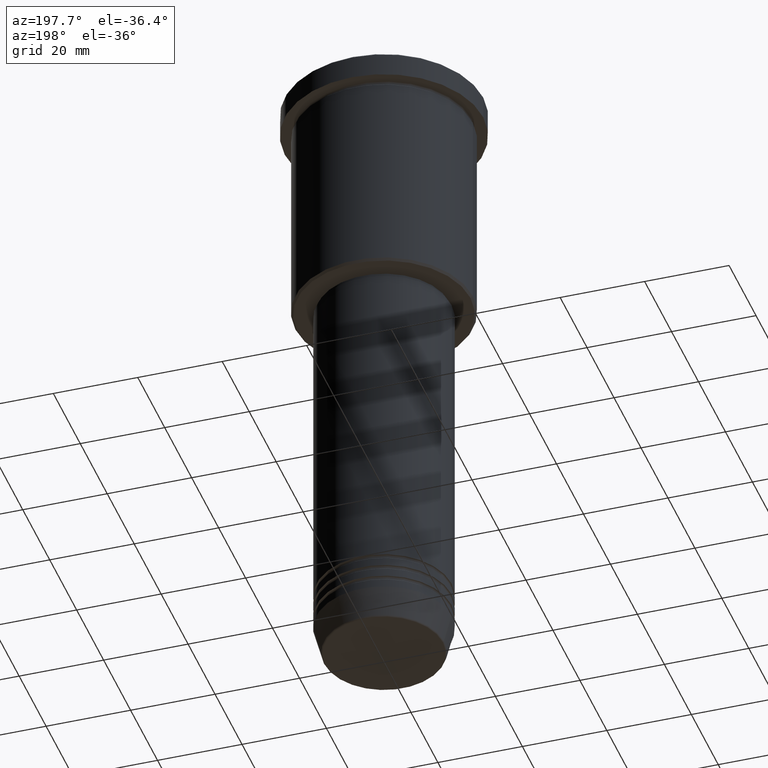
[diagram: clean part render]
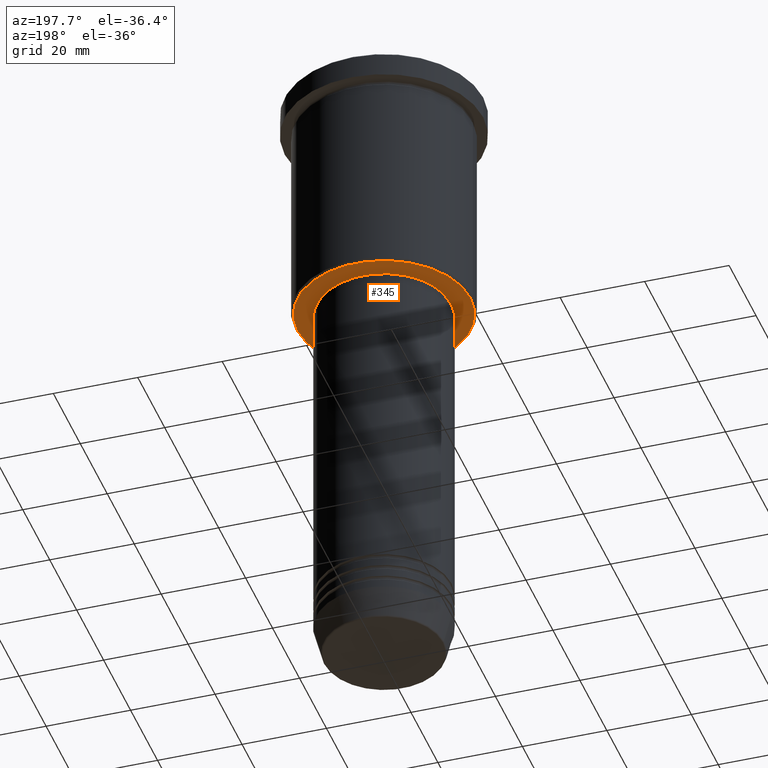
[diagram: same view with one face highlighted and labeled with its STEP entity id]
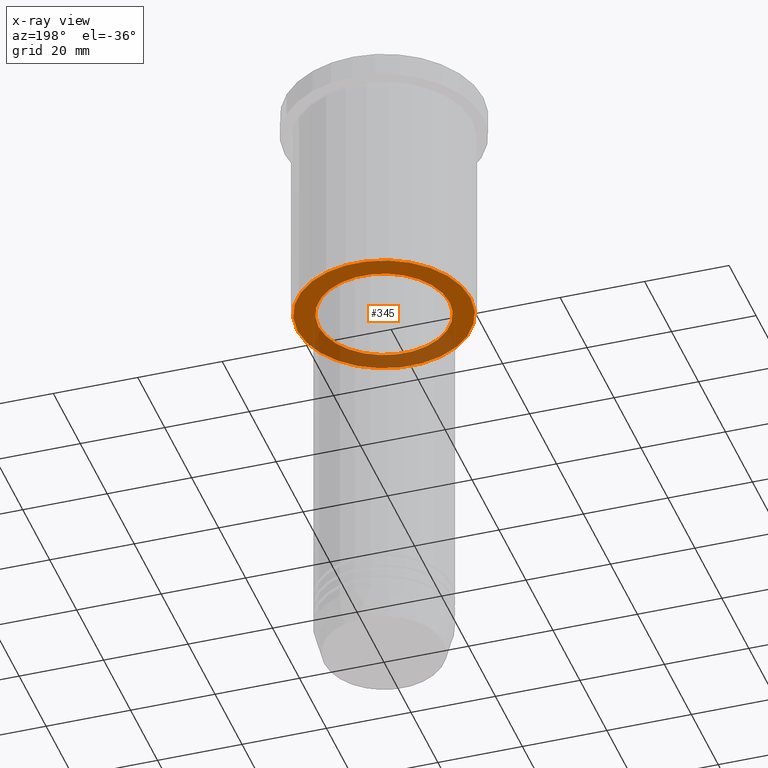
[diagram: x-ray of the same camera — body ghosted, the highlighted face saturated]
A machine part, auxiliary view. The second image highlights one B-rep face of the part: STEP entity #345.
The next image is the same camera in x-ray: the body ghosted, the highlighted face saturated — about 32% of this face is hidden behind the body in this view.
In plain terms, the highlighted planar face has unit normal (0, 0, -1).
Its self-contained STEP definition (entity closure, byte-faithful):
#2 = DIRECTION ( 'NONE',  ( 0.000000000000000000, 0.000000000000000000, -1.000000000000000000 ) ) ;
#96 = CARTESIAN_POINT ( 'NONE',  ( -15.50000000000000000, 1.898202538678397557E-15, -56.00000000000000711 ) ) ;
#162 = DIRECTION ( 'NONE',  ( 0.000000000000000000, 0.000000000000000000, -1.000000000000000000 ) ) ;
#213 = EDGE_CURVE ( 'NONE', #510, #652, #760, .T. ) ;
#240 = CARTESIAN_POINT ( 'NONE',  ( -20.50000000000001776, 2.541142108230759057E-15, -56.00000000000000711 ) ) ;
#248 = DIRECTION ( 'NONE',  ( -1.000000000000000000, 0.000000000000000000, 0.000000000000000000 ) ) ;
#255 = DIRECTION ( 'NONE',  ( 0.000000000000000000, 0.000000000000000000, -1.000000000000000000 ) ) ;
#261 = FACE_OUTER_BOUND ( 'NONE', #382, .T. ) ;
#275 = AXIS2_PLACEMENT_3D ( 'NONE', #449, #255, #631 ) ;
#299 = ORIENTED_EDGE ( 'NONE', *, *, #835, .T. ) ;
#343 = CARTESIAN_POINT ( 'NONE',  ( 0.000000000000000000, 0.000000000000000000, -56.00000000000000711 ) ) ;
#345 = ADVANCED_FACE ( 'NONE', ( #261, #806 ), #349, .T. ) ;
#349 = PLANE ( 'NONE',  #275 ) ;
#353 = CARTESIAN_POINT ( 'NONE',  ( 0.000000000000000000, 0.000000000000000000, -56.00000000000000711 ) ) ;
#361 = CARTESIAN_POINT ( 'NONE',  ( 0.000000000000000000, 0.000000000000000000, -56.00000000000000711 ) ) ;
#362 = CARTESIAN_POINT ( 'NONE',  ( 0.000000000000000000, 0.000000000000000000, -56.00000000000000711 ) ) ;
#382 = EDGE_LOOP ( 'NONE', ( #900, #611 ) ) ;
#449 = CARTESIAN_POINT ( 'NONE',  ( 0.000000000000000000, 21.00000000000000000, -56.00000000000000711 ) ) ;
#474 = EDGE_LOOP ( 'NONE', ( #1025, #299 ) ) ;
#510 = VERTEX_POINT ( 'NONE', #920 ) ;
#515 = VERTEX_POINT ( 'NONE', #96 ) ;
#531 = CIRCLE ( 'NONE', #568, 20.50000000000001776 ) ;
#566 = AXIS2_PLACEMENT_3D ( 'NONE', #353, #2, #248 ) ;
#568 = AXIS2_PLACEMENT_3D ( 'NONE', #361, #162, #998 ) ;
#578 = DIRECTION ( 'NONE',  ( -0.000000000000000000, -0.000000000000000000, 1.000000000000000000 ) ) ;
#611 = ORIENTED_EDGE ( 'NONE', *, *, #1113, .T. ) ;
#631 = DIRECTION ( 'NONE',  ( -1.000000000000000000, 0.000000000000000000, -0.000000000000000000 ) ) ;
#652 = VERTEX_POINT ( 'NONE', #240 ) ;
#685 = EDGE_CURVE ( 'NONE', #879, #515, #930, .T. ) ;
#760 = CIRCLE ( 'NONE', #566, 20.50000000000001776 ) ;
#785 = AXIS2_PLACEMENT_3D ( 'NONE', #362, #578, #906 ) ;
#806 = FACE_BOUND ( 'NONE', #474, .T. ) ;
#835 = EDGE_CURVE ( 'NONE', #515, #879, #1051, .T. ) ;
#853 = CARTESIAN_POINT ( 'NONE',  ( 15.50000000000000000, 0.000000000000000000, -56.00000000000000711 ) ) ;
#879 = VERTEX_POINT ( 'NONE', #853 ) ;
#900 = ORIENTED_EDGE ( 'NONE', *, *, #213, .T. ) ;
#906 = DIRECTION ( 'NONE',  ( 1.000000000000000000, 0.000000000000000000, 0.000000000000000000 ) ) ;
#920 = CARTESIAN_POINT ( 'NONE',  ( 20.50000000000001776, 0.000000000000000000, -56.00000000000000711 ) ) ;
#930 = CIRCLE ( 'NONE', #1179, 15.50000000000000000 ) ;
#976 = DIRECTION ( 'NONE',  ( -0.000000000000000000, -0.000000000000000000, 1.000000000000000000 ) ) ;
#998 = DIRECTION ( 'NONE',  ( -1.000000000000000000, 0.000000000000000000, 0.000000000000000000 ) ) ;
#1025 = ORIENTED_EDGE ( 'NONE', *, *, #685, .T. ) ;
#1051 = CIRCLE ( 'NONE', #785, 15.50000000000000000 ) ;
#1113 = EDGE_CURVE ( 'NONE', #652, #510, #531, .T. ) ;
#1178 = DIRECTION ( 'NONE',  ( 1.000000000000000000, 0.000000000000000000, 0.000000000000000000 ) ) ;
#1179 = AXIS2_PLACEMENT_3D ( 'NONE', #343, #976, #1178 ) ;